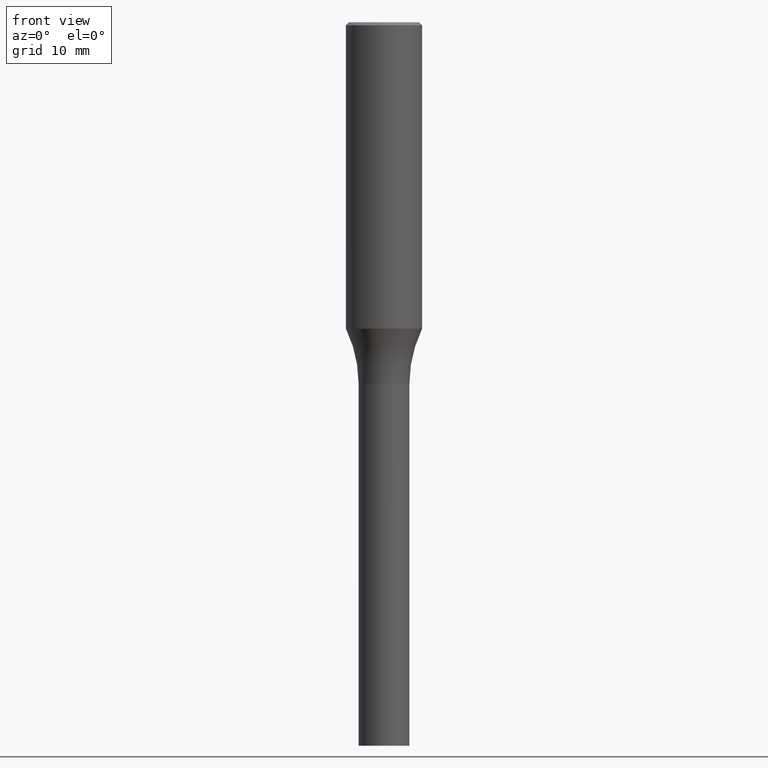
[diagram: clean part render]
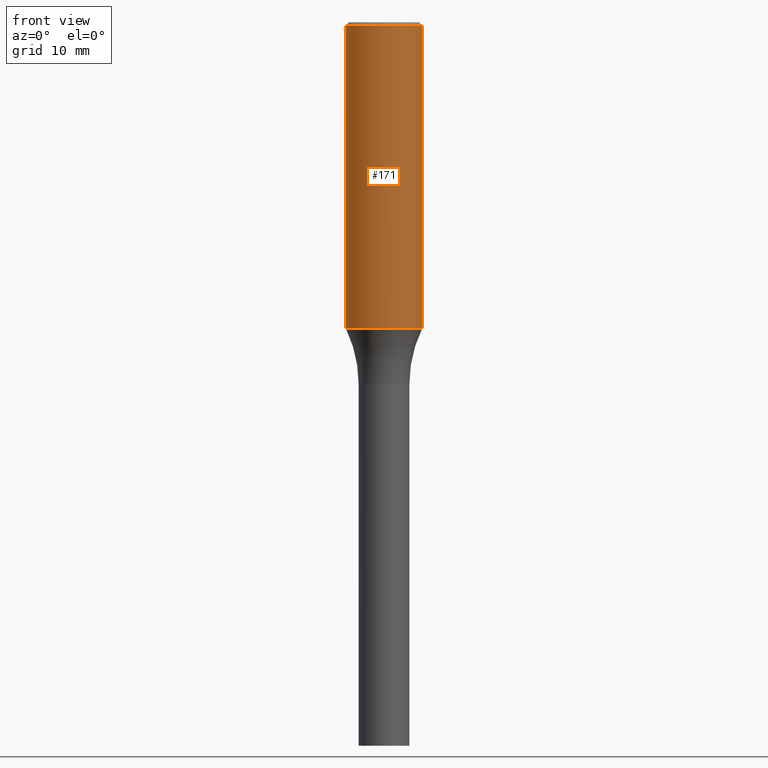
[diagram: same view with one face highlighted and labeled with its STEP entity id]
A machine part, front view. The second image highlights one B-rep face of the part: STEP entity #171.
In plain terms, the highlighted cylindrical surface (partial cylindrical patch) has radius 4.7625 mm, axis along (-0, 0, 1).
Its self-contained STEP definition (entity closure, byte-faithful):
#6 = EDGE_CURVE ( 'NONE', #176, #272, #51, .T. ) ;
#17 = EDGE_CURVE ( 'NONE', #417, #43, #453, .T. ) ;
#19 = EDGE_LOOP ( 'NONE', ( #40, #59, #406, #360 ) ) ;
#21 = DIRECTION ( 'NONE',  ( -2.445468806185136877E-29, 3.491481338843145188E-15, 1.000000000000000000 ) ) ;
#35 = CARTESIAN_POINT ( 'NONE',  ( 3.668203209277705088E-31, -5.237222008264718399E-17, -0.01499999999999999944 ) ) ;
#40 = ORIENTED_EDGE ( 'NONE', *, *, #6, .F. ) ;
#43 = VERTEX_POINT ( 'NONE', #148 ) ;
#50 = CARTESIAN_POINT ( 'NONE',  ( 3.689157981581848142E-29, -5.267139869524930466E-15, -1.508568816028707404 ) ) ;
#51 = LINE ( 'NONE', #341, #143 ) ;
#57 = DIRECTION ( 'NONE',  ( 1.000000000000000000, -6.982962677686265922E-15, 0.000000000000000000 ) ) ;
#59 = ORIENTED_EDGE ( 'NONE', *, *, #74, .T. ) ;
#72 = DIRECTION ( 'NONE',  ( -2.445468806185136597E-29, 3.491481338843145583E-15, 1.000000000000000000 ) ) ;
#74 = EDGE_CURVE ( 'NONE', #176, #417, #159, .T. ) ;
#119 = CYLINDRICAL_SURFACE ( 'NONE', #138, 0.1875000000000000555 ) ;
#137 = CARTESIAN_POINT ( 'NONE',  ( 0.1875000000000000555, -1.309305502066175205E-15, 9.142831454617382414E-30 ) ) ;
#138 = AXIS2_PLACEMENT_3D ( 'NONE', #296, #263, #400 ) ;
#143 = VECTOR ( 'NONE', #343, 39.37007874015748143 ) ;
#148 = CARTESIAN_POINT ( 'NONE',  ( 0.1875000000000000278, -1.338715594664809642E-15, -0.01499999999999999944 ) ) ;
#159 = CIRCLE ( 'NONE', #414, 0.1875000000000000555 ) ;
#171 = ADVANCED_FACE ( 'NONE', ( #408 ), #119, .T. ) ;
#176 = VERTEX_POINT ( 'NONE', #257 ) ;
#200 = DIRECTION ( 'NONE',  ( -2.445468806185136597E-29, 3.491481338843145583E-15, 1.000000000000000000 ) ) ;
#202 = VECTOR ( 'NONE', #21, 39.37007874015748143 ) ;
#227 = DIRECTION ( 'NONE',  ( 1.000000000000000000, -6.982962677686265922E-15, 0.000000000000000000 ) ) ;
#253 = CARTESIAN_POINT ( 'NONE',  ( 0.1875000000000000555, -6.576445371591104685E-15, -1.508568816028707404 ) ) ;
#257 = CARTESIAN_POINT ( 'NONE',  ( -0.1875000000000000555, -3.934872239974741828E-15, -1.508568816028707404 ) ) ;
#263 = DIRECTION ( 'NONE',  ( -2.445468806185136597E-29, 3.491481338843145583E-15, 1.000000000000000000 ) ) ;
#272 = VERTEX_POINT ( 'NONE', #389 ) ;
#296 = CARTESIAN_POINT ( 'NONE',  ( 0.000000000000000000, 0.000000000000000000, 0.000000000000000000 ) ) ;
#315 = EDGE_CURVE ( 'NONE', #272, #43, #423, .T. ) ;
#341 = CARTESIAN_POINT ( 'NONE',  ( -0.1875000000000000555, 1.332267629550188243E-15, -9.223003294227950793E-30 ) ) ;
#343 = DIRECTION ( 'NONE',  ( -2.445468806185136877E-29, 3.491481338843145188E-15, 1.000000000000000000 ) ) ;
#360 = ORIENTED_EDGE ( 'NONE', *, *, #315, .F. ) ;
#388 = AXIS2_PLACEMENT_3D ( 'NONE', #35, #72, #57 ) ;
#389 = CARTESIAN_POINT ( 'NONE',  ( -0.1875000000000000278, 1.256933281983527732E-15, -0.01499999999999999944 ) ) ;
#400 = DIRECTION ( 'NONE',  ( 1.000000000000000000, -6.982962677686265922E-15, 4.876176775795935793E-29 ) ) ;
#406 = ORIENTED_EDGE ( 'NONE', *, *, #17, .T. ) ;
#408 = FACE_OUTER_BOUND ( 'NONE', #19, .T. ) ;
#414 = AXIS2_PLACEMENT_3D ( 'NONE', #50, #200, #227 ) ;
#417 = VERTEX_POINT ( 'NONE', #253 ) ;
#423 = CIRCLE ( 'NONE', #388, 0.1875000000000000278 ) ;
#453 = LINE ( 'NONE', #137, #202 ) ;